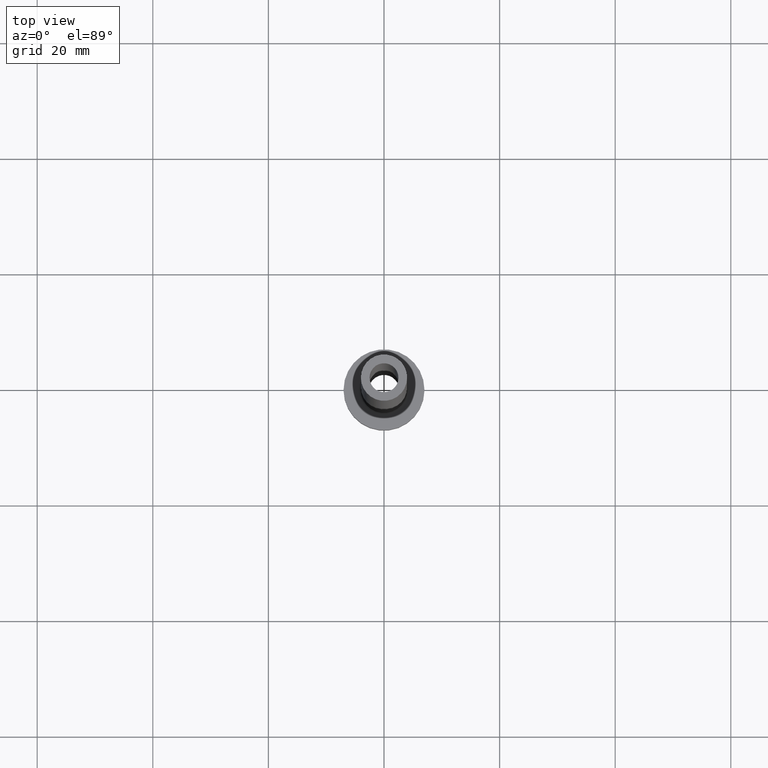
[diagram: clean part render]
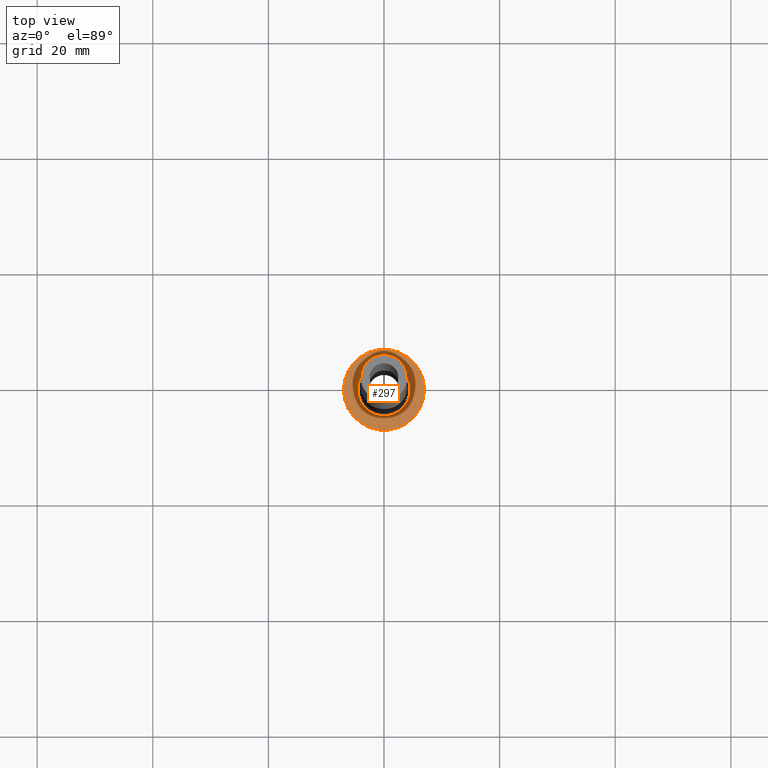
[diagram: same view with one face highlighted and labeled with its STEP entity id]
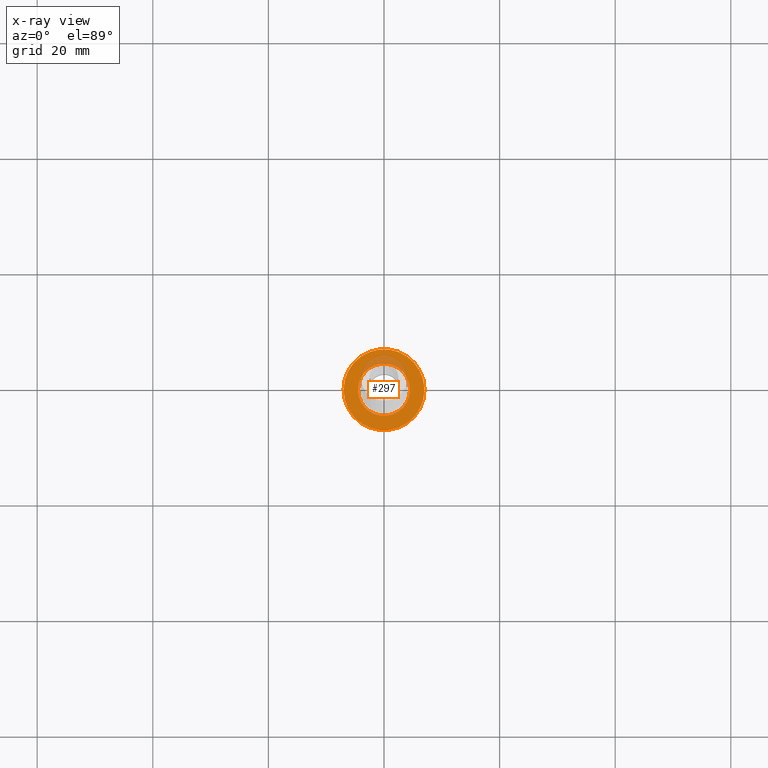
[diagram: x-ray of the same camera — body ghosted, the highlighted face saturated]
A machine part, top view. The second image highlights one B-rep face of the part: STEP entity #297.
The next image is the same camera in x-ray: the body ghosted, the highlighted face saturated — about 13% of this face is hidden behind the body in this view.
In plain terms, the highlighted planar face has unit normal (0, 0, 1).
Its self-contained STEP definition (entity closure, byte-faithful):
#2 = DIRECTION ( 'NONE',  ( 1.000000000000000000, 0.000000000000000000, -0.000000000000000000 ) ) ;
#4 = DIRECTION ( 'NONE',  ( 1.000000000000000000, 0.000000000000000000, 0.000000000000000000 ) ) ;
#9 = ORIENTED_EDGE ( 'NONE', *, *, #172, .T. ) ;
#32 = DIRECTION ( 'NONE',  ( 1.000000000000000000, 0.000000000000000000, 0.000000000000000000 ) ) ;
#55 = ORIENTED_EDGE ( 'NONE', *, *, #143, .T. ) ;
#69 = DIRECTION ( 'NONE',  ( 1.000000000000000000, 0.000000000000000000, 0.000000000000000000 ) ) ;
#74 = CARTESIAN_POINT ( 'NONE',  ( 7.000000000000000000, 8.572527594031473190E-16, 5.000000000000000000 ) ) ;
#87 = EDGE_CURVE ( 'NONE', #290, #332, #456, .T. ) ;
#121 = CARTESIAN_POINT ( 'NONE',  ( 4.500000000000000888, 0.000000000000000000, 5.000000000000002665 ) ) ;
#125 = CARTESIAN_POINT ( 'NONE',  ( 0.000000000000000000, 0.000000000000000000, 5.000000000000000000 ) ) ;
#138 = DIRECTION ( 'NONE',  ( 0.000000000000000000, 0.000000000000000000, 1.000000000000000000 ) ) ;
#143 = EDGE_CURVE ( 'NONE', #160, #402, #242, .T. ) ;
#144 = CARTESIAN_POINT ( 'NONE',  ( 0.000000000000000000, 0.000000000000000000, 5.000000000000000000 ) ) ;
#147 = CARTESIAN_POINT ( 'NONE',  ( 0.000000000000000000, 0.000000000000000000, 5.000000000000000000 ) ) ;
#160 = VERTEX_POINT ( 'NONE', #388 ) ;
#172 = EDGE_CURVE ( 'NONE', #332, #290, #351, .T. ) ;
#193 = CARTESIAN_POINT ( 'NONE',  ( 0.000000000000000000, 0.000000000000000000, 5.000000000000000000 ) ) ;
#212 = CARTESIAN_POINT ( 'NONE',  ( -7.000000000000000000, 0.000000000000000000, 5.000000000000000000 ) ) ;
#224 = CIRCLE ( 'NONE', #330, 4.500000000000000888 ) ;
#234 = DIRECTION ( 'NONE',  ( 1.000000000000000000, 0.000000000000000000, 0.000000000000000000 ) ) ;
#236 = AXIS2_PLACEMENT_3D ( 'NONE', #309, #237, #69 ) ;
#237 = DIRECTION ( 'NONE',  ( 0.000000000000000000, 0.000000000000000000, 1.000000000000000000 ) ) ;
#238 = DIRECTION ( 'NONE',  ( -0.000000000000000000, -0.000000000000000000, -1.000000000000000000 ) ) ;
#242 = CIRCLE ( 'NONE', #258, 4.500000000000000888 ) ;
#258 = AXIS2_PLACEMENT_3D ( 'NONE', #147, #238, #32 ) ;
#270 = EDGE_LOOP ( 'NONE', ( #9, #286 ) ) ;
#283 = EDGE_LOOP ( 'NONE', ( #294, #55 ) ) ;
#286 = ORIENTED_EDGE ( 'NONE', *, *, #87, .T. ) ;
#290 = VERTEX_POINT ( 'NONE', #74 ) ;
#294 = ORIENTED_EDGE ( 'NONE', *, *, #445, .T. ) ;
#297 = ADVANCED_FACE ( 'NONE', ( #307, #453 ), #315, .T. ) ;
#303 = AXIS2_PLACEMENT_3D ( 'NONE', #193, #138, #234 ) ;
#307 = FACE_BOUND ( 'NONE', #283, .T. ) ;
#309 = CARTESIAN_POINT ( 'NONE',  ( 0.000000000000000000, 0.000000000000000000, 5.000000000000000000 ) ) ;
#310 = AXIS2_PLACEMENT_3D ( 'NONE', #144, #424, #2 ) ;
#315 = PLANE ( 'NONE',  #310 ) ;
#316 = DIRECTION ( 'NONE',  ( -0.000000000000000000, -0.000000000000000000, -1.000000000000000000 ) ) ;
#330 = AXIS2_PLACEMENT_3D ( 'NONE', #125, #316, #4 ) ;
#332 = VERTEX_POINT ( 'NONE', #212 ) ;
#351 = CIRCLE ( 'NONE', #236, 7.000000000000000000 ) ;
#388 = CARTESIAN_POINT ( 'NONE',  ( -4.500000000000000888, 5.510910596163088569E-16, 5.000000000000002665 ) ) ;
#402 = VERTEX_POINT ( 'NONE', #121 ) ;
#424 = DIRECTION ( 'NONE',  ( 0.000000000000000000, 0.000000000000000000, 1.000000000000000000 ) ) ;
#445 = EDGE_CURVE ( 'NONE', #402, #160, #224, .T. ) ;
#453 = FACE_OUTER_BOUND ( 'NONE', #270, .T. ) ;
#456 = CIRCLE ( 'NONE', #303, 7.000000000000000000 ) ;